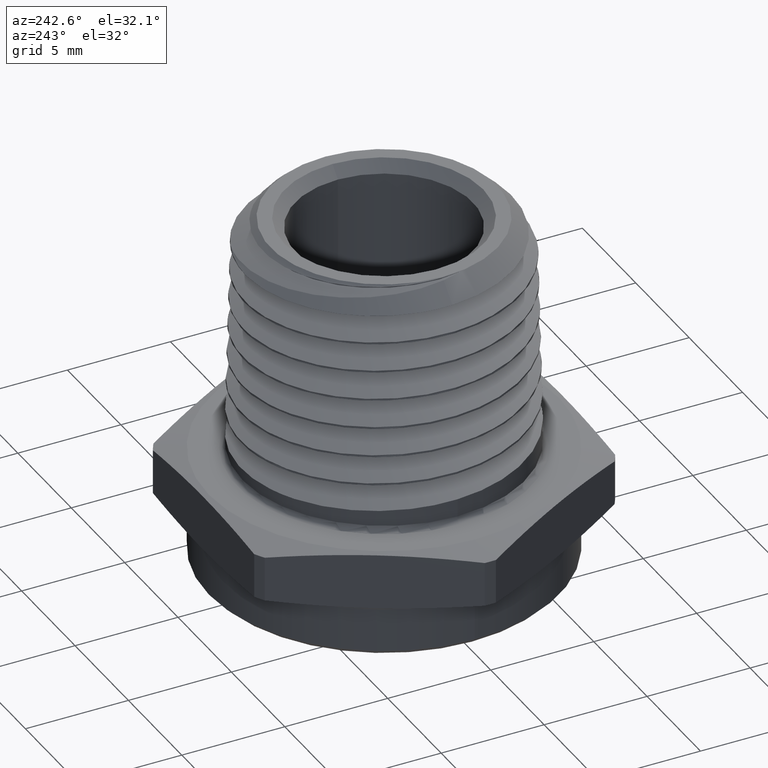
[diagram: clean part render]
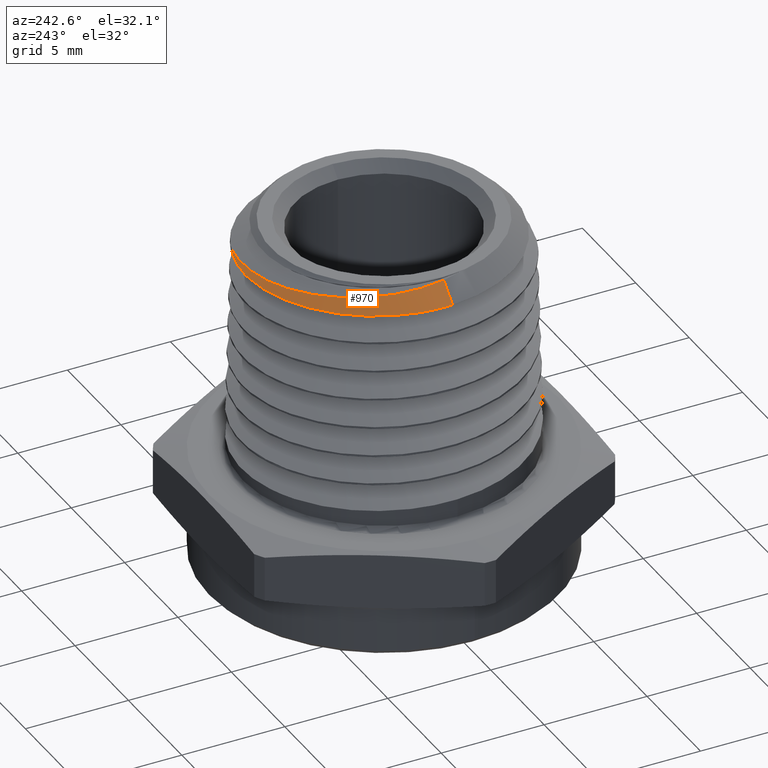
[diagram: same view with one face highlighted and labeled with its STEP entity id]
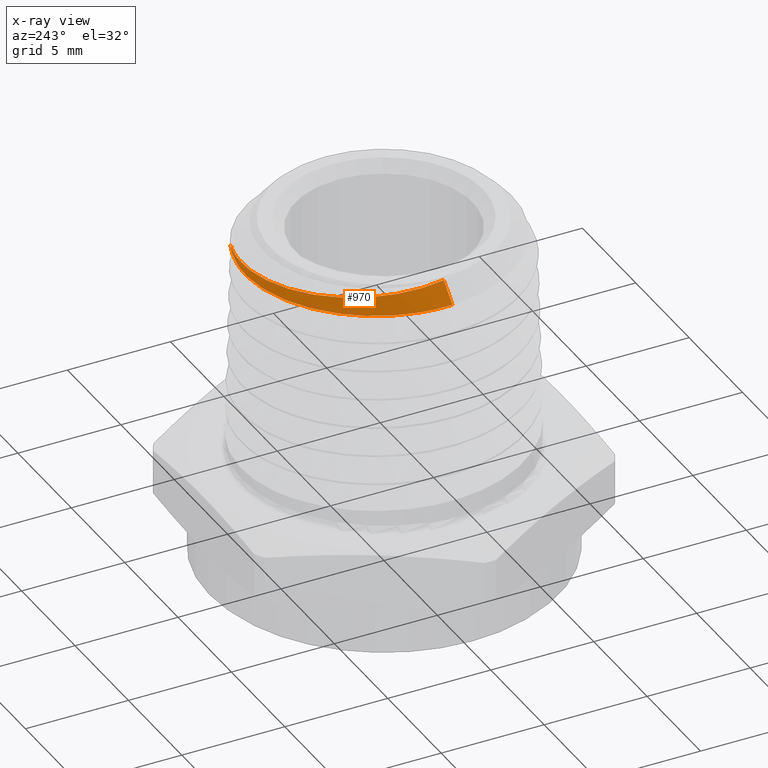
[diagram: x-ray of the same camera — body ghosted, the highlighted face saturated]
A machine part, auxiliary view. The second image highlights one B-rep face of the part: STEP entity #970.
The next image is the same camera in x-ray: the body ghosted, the highlighted face saturated — about 0% of this face is hidden behind the body in this view.
In plain terms, the highlighted conical surface has half-angle 45 deg.
Its self-contained STEP definition (entity closure, byte-faithful):
#44 = DIRECTION ( 'NONE',  ( -1.000000000000000000, 0.0000000000000000000, 0.0000000000000000000 ) ) ;
#660 = CARTESIAN_POINT ( 'NONE',  ( -0.2615562317067677800, 0.0000000000000000000, 0.5249437682932327500 ) ) ;
#664 = DIRECTION ( 'NONE',  ( -0.7071067811865514600, 0.0000000000000000000, -0.7071067811865433500 ) ) ;
#856 = CARTESIAN_POINT ( 'NONE',  ( 0.0000000000000000000, 0.0000000000000000000, 0.5249437682932327500 ) ) ;
#857 = DIRECTION ( 'NONE',  ( -0.0000000000000000000, -0.0000000000000000000, -1.000000000000000000 ) ) ;
#858 = DIRECTION ( 'NONE',  ( -1.000000000000000000, 0.0000000000000000000, 0.0000000000000000000 ) ) ;
#941 = DIRECTION ( 'NONE',  ( -0.0000000000000000000, -0.0000000000000000000, -1.000000000000000000 ) ) ;
#942 = CARTESIAN_POINT ( 'NONE',  ( 0.0000000000000000000, 0.0000000000000000000, 0.5249437682932327500 ) ) ;
#970 = ADVANCED_FACE ( 'NONE', ( #1121 ), #1125, .T. ) ;
#1121 = FACE_OUTER_BOUND ( 'NONE', #1581, .T. ) ;
#1125 = CONICAL_SURFACE ( 'NONE', #1776, 0.2615562317067677800, 0.7853981633974539400 ) ;
#1204 = ORIENTED_EDGE ( 'NONE', *, *, #1393, .F. ) ;
#1205 = ORIENTED_EDGE ( 'NONE', *, *, #1733, .T. ) ;
#1206 = ORIENTED_EDGE ( 'NONE', *, *, #1406, .F. ) ;
#1207 = ORIENTED_EDGE ( 'NONE', *, *, #1734, .T. ) ;
#1393 = EDGE_CURVE ( 'NONE', #1499, #1500, #2184, .T. ) ;
#1406 = EDGE_CURVE ( 'NONE', #1510, #1505, #2192, .T. ) ;
#1499 = VERTEX_POINT ( 'NONE', #4093 ) ;
#1500 = VERTEX_POINT ( 'NONE', #4094 ) ;
#1505 = VERTEX_POINT ( 'NONE', #4099 ) ;
#1510 = VERTEX_POINT ( 'NONE', #4104 ) ;
#1581 = EDGE_LOOP ( 'NONE', ( #1204, #1205, #1206, #1207 ) ) ;
#1733 = EDGE_CURVE ( 'NONE', #1499, #1505, #4014, .T. ) ;
#1734 = EDGE_CURVE ( 'NONE', #1510, #1500, #4015, .T. ) ;
#1776 = AXIS2_PLACEMENT_3D ( 'NONE', #942, #941, #44 ) ;
#2184 = LINE ( 'NONE', #660, #2188 ) ;
#2188 = VECTOR ( 'NONE', #664, 39.37007874015748900 ) ;
#2192 = CIRCLE ( 'NONE', #2287, 0.2615562317067677800 ) ;
#2287 = AXIS2_PLACEMENT_3D ( 'NONE', #856, #857, #858 ) ;
#4014 = B_SPLINE_CURVE_WITH_KNOTS ( 'NONE', 3,
 ( #5296, #5295, #5301, #5302, #5303, #5304, #5305, #5306, #5307, #5308, #5309, #5310, #5311, #5312, #5313, #5314, #5315, #5316, #5317, #5318, #5319, #5320, #5321, #5322, #5323, #5324, #5325, #5326 ),
 .UNSPECIFIED., .F., .F.,
 ( 4, 2, 2, 2, 2, 2, 2, 2, 2, 2, 2, 2, 2, 4 ),
 ( 0.0009365137314799167100, 0.001698818907980279000, 0.002461124084480641100, 0.003223429260981003200, 0.003985734437481365700, 0.005510344790482088100, 0.006272649966982450600, 0.007034955143482813200, 0.008559565496483534700, 0.009321870672983897200, 0.01008417584948426000, 0.01160878620248498100, 0.01237109137898534400, 0.01313339655548570600 ),
 .UNSPECIFIED. ) ;
#4015 = B_SPLINE_CURVE_WITH_KNOTS ( 'NONE', 3,
 ( #5299, #5300, #5327, #5328, #5329, #5330, #5331, #5332, #5333, #5334, #5335, #5336, #5337, #5338, #5339, #5340, #5341, #5342, #5343, #5344, #5345, #5346, #5347, #5348 ),
 .UNSPECIFIED., .F., .F.,
 ( 4, 2, 2, 2, 2, 2, 2, 2, 2, 2, 2, 4 ),
 ( 0.0000000000000000000, 0.001290015074581900600, 0.001935022611872850300, 0.002580030149163800300, 0.003870045223745699000, 0.005160060298327598900, 0.006450075372909498800, 0.007095082910200447900, 0.007740090447491397100, 0.008385097984782347000, 0.009030105522073296100, 0.01032012059665519300 ),
 .UNSPECIFIED. ) ;
#4093 = CARTESIAN_POINT ( 'NONE',  ( -0.2206028325516573900, -2.774533118565267500E-017, 0.5658971674483427300 ) ) ;
#4094 = CARTESIAN_POINT ( 'NONE',  ( -0.2525270690005556600, 2.604860631035694000E-016, 0.5339729309994447600 ) ) ;
#4099 = CARTESIAN_POINT ( 'NONE',  ( 0.1057024745304884400, 0.2392460014770902100, 0.5249437682932327500 ) ) ;
#4104 = CARTESIAN_POINT ( 'NONE',  ( 0.004272530422017475700, 0.2615213334097990000, 0.5249437682932264200 ) ) ;
#5295 = CARTESIAN_POINT ( 'NONE',  ( -0.2215294990815822300, 0.009917801561172326000, 0.5649705009184181600 ) ) ;
#5296 = CARTESIAN_POINT ( 'NONE',  ( -0.2206028325516573900, -2.774533118565267500E-017, 0.5658971674483427300 ) ) ;
#5299 = CARTESIAN_POINT ( 'NONE',  ( 0.004272530422017475700, 0.2615213334097990000, 0.5249437682932264200 ) ) ;
#5300 = CARTESIAN_POINT ( 'NONE',  ( -0.01289642752674705100, 0.2614295560118738400, 0.5253159889893170800 ) ) ;
#5301 = CARTESIAN_POINT ( 'NONE',  ( -0.2217949070800504000, 0.01989639883731802000, 0.5640394818907915600 ) ) ;
#5302 = CARTESIAN_POINT ( 'NONE',  ( -0.2209523303017891500, 0.03998120177189494500, 0.5621826725707718100 ) ) ;
#5303 = CARTESIAN_POINT ( 'NONE',  ( -0.2198346667134641100, 0.05004236746953475600, 0.5612610737809993200 ) ) ;
#5304 = CARTESIAN_POINT ( 'NONE',  ( -0.2163056466303254800, 0.06970391682706260400, 0.5594585424674386500 ) ) ;
#5305 = CARTESIAN_POINT ( 'NONE',  ( -0.2138928750078358500, 0.07937636814735170300, 0.5585707151538241700 ) ) ;
#5306 = CARTESIAN_POINT ( 'NONE',  ( -0.2078155834359354800, 0.09841136373358891400, 0.5567760301539465000 ) ) ;
#5307 = CARTESIAN_POINT ( 'NONE',  ( -0.2041174449725234300, 0.1078370821822153700, 0.5558647606379901700 ) ) ;
#5308 = CARTESIAN_POINT ( 'NONE',  ( -0.1912746121271239300, 0.1351073722225462300, 0.5531775551456531400 ) ) ;
#5309 = CARTESIAN_POINT ( 'NONE',  ( -0.1804871358807020600, 0.1518688398645066700, 0.5514700410241429900 ) ) ;
#5310 = CARTESIAN_POINT ( 'NONE',  ( -0.1611256577925675400, 0.1749657697031862800, 0.5488567150414058700 ) ) ;
#5311 = CARTESIAN_POINT ( 'NONE',  ( -0.1541446223754352500, 0.1822977821418835200, 0.5479753746758495600 ) ) ;
#5312 = CARTESIAN_POINT ( 'NONE',  ( -0.1394804442301923200, 0.1958673443456105100, 0.5462506257894417200 ) ) ;
#5313 = CARTESIAN_POINT ( 'NONE',  ( -0.1317546821400761800, 0.2021587899004168600, 0.5454011445254369800 ) ) ;
#5314 = CARTESIAN_POINT ( 'NONE',  ( -0.1074130618524326300, 0.2195716078318793200, 0.5428732386053724000 ) ) ;
#5315 = CARTESIAN_POINT ( 'NONE',  ( -0.08947776319503726600, 0.2292799469406376900, 0.5411820886853892000 ) ) ;
#5316 = CARTESIAN_POINT ( 'NONE',  ( -0.06165253329519604400, 0.2402381256632910300, 0.5386760297247360500 ) ) ;
#5317 = CARTESIAN_POINT ( 'NONE',  ( -0.05217266113415242000, 0.2433203758420103000, 0.5378489136464473800 ) ) ;
#5318 = CARTESIAN_POINT ( 'NONE',  ( -0.03280105764082202200, 0.2483361810033672700, 0.5362054953604068500 ) ) ;
#5319 = CARTESIAN_POINT ( 'NONE',  ( -0.02284436628261101900, 0.2502746643470291100, 0.5353839714255213000 ) ) ;
#5320 = CARTESIAN_POINT ( 'NONE',  ( 0.006993416028371135900, 0.2542451113102594000, 0.5329463903205131600 ) ) ;
#5321 = CARTESIAN_POINT ( 'NONE',  ( 0.02692055053394617000, 0.2545413789740055800, 0.5313220895247475800 ) ) ;
#5322 = CARTESIAN_POINT ( 'NONE',  ( 0.05686643054312131400, 0.2514338634226414000, 0.5289097969948777200 ) ) ;
#5323 = CARTESIAN_POINT ( 'NONE',  ( 0.06687159618644790400, 0.2497896791471762600, 0.5281085752490811700 ) ) ;
#5324 = CARTESIAN_POINT ( 'NONE',  ( 0.08649817885428279200, 0.2453666608231642700, 0.5265266025370012300 ) ) ;
#5325 = CARTESIAN_POINT ( 'NONE',  ( 0.09617038228972356300, 0.2425862209582199100, 0.5257406584343186100 ) ) ;
#5326 = CARTESIAN_POINT ( 'NONE',  ( 0.1057024745304884400, 0.2392460014770902100, 0.5249437682932327500 ) ) ;
#5327 = CARTESIAN_POINT ( 'NONE',  ( -0.02976980507556214000, 0.2596576814071854300, 0.5256900685164659400 ) ) ;
#5328 = CARTESIAN_POINT ( 'NONE',  ( -0.05465627441464388600, 0.2545910862781404200, 0.5262457081366660500 ) ) ;
#5329 = CARTESIAN_POINT ( 'NONE',  ( -0.06288058781557522000, 0.2524975122887667700, 0.5264302796568951500 ) ) ;
#5330 = CARTESIAN_POINT ( 'NONE',  ( -0.07918312059002645400, 0.2474800264272527000, 0.5268008905096111000 ) ) ;
#5331 = CARTESIAN_POINT ( 'NONE',  ( -0.08728609484459143300, 0.2445411286485084100, 0.5269875552013531000 ) ) ;
#5332 = CARTESIAN_POINT ( 'NONE',  ( -0.1108468247898714400, 0.2346488751365379800, 0.5275462485795936500 ) ) ;
#5333 = CARTESIAN_POINT ( 'NONE',  ( -0.1257283856448405700, 0.2265893983560138000, 0.5279225408199879100 ) ) ;
#5334 = CARTESIAN_POINT ( 'NONE',  ( -0.1538628257233598000, 0.2075805932562472800, 0.5286717784493225600 ) ) ;
#5335 = CARTESIAN_POINT ( 'NONE',  ( -0.1671778266223849800, 0.1965223018603645700, 0.5290467852019515900 ) ) ;
#5336 = CARTESIAN_POINT ( 'NONE',  ( -0.1909781860424359700, 0.1723720492745669000, 0.5297949009420680500 ) ) ;
#5337 = CARTESIAN_POINT ( 'NONE',  ( -0.2016190119906314800, 0.1591985058343664000, 0.5301746707946727300 ) ) ;
#5338 = CARTESIAN_POINT ( 'NONE',  ( -0.2156536160056297400, 0.1377575239011280300, 0.5307448660891930200 ) ) ;
#5339 = CARTESIAN_POINT ( 'NONE',  ( -0.2200012345230405200, 0.1303269309965044100, 0.5309352597081729000 ) ) ;
#5340 = CARTESIAN_POINT ( 'NONE',  ( -0.2278484497319861500, 0.1152330494236105700, 0.5313113324018222700 ) ) ;
#5341 = CARTESIAN_POINT ( 'NONE',  ( -0.2313762873466634100, 0.1075292396279620300, 0.5314981173368088500 ) ) ;
#5342 = CARTESIAN_POINT ( 'NONE',  ( -0.2376471212705463200, 0.09181068159528317500, 0.5318751937778909400 ) ) ;
#5343 = CARTESIAN_POINT ( 'NONE',  ( -0.2403897020131020300, 0.08379577963685053100, 0.5320659396997019500 ) ) ;
#5344 = CARTESIAN_POINT ( 'NONE',  ( -0.2450802583193129600, 0.06745112944186418300, 0.5324493408730369700 ) ) ;
#5345 = CARTESIAN_POINT ( 'NONE',  ( -0.2470358738679762900, 0.05907342779399341700, 0.5326430173229437200 ) ) ;
#5346 = CARTESIAN_POINT ( 'NONE',  ( -0.2515923435037167300, 0.03383860653381234200, 0.5332182244588983300 ) ) ;
#5347 = CARTESIAN_POINT ( 'NONE',  ( -0.2529089485777578600, 0.01695090390849977500, 0.5335910514222422800 ) ) ;
#5348 = CARTESIAN_POINT ( 'NONE',  ( -0.2525270690005556600, 2.604860631035694000E-016, 0.5339729309994447600 ) ) ;